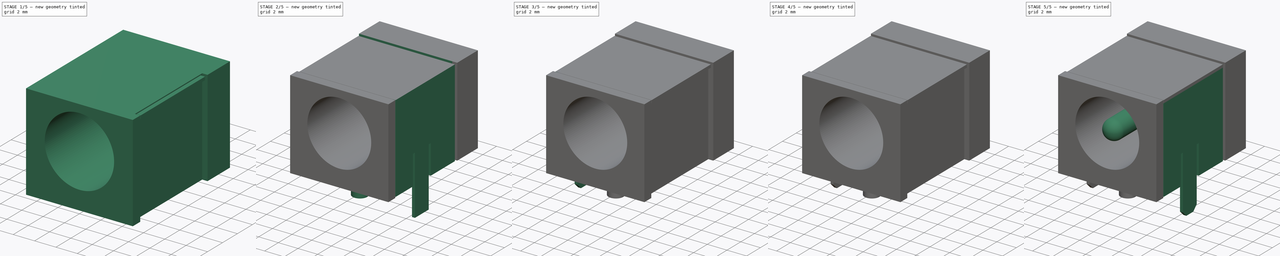
[diagram: build sequence overview — one tinted view per stage of 5, left to right]
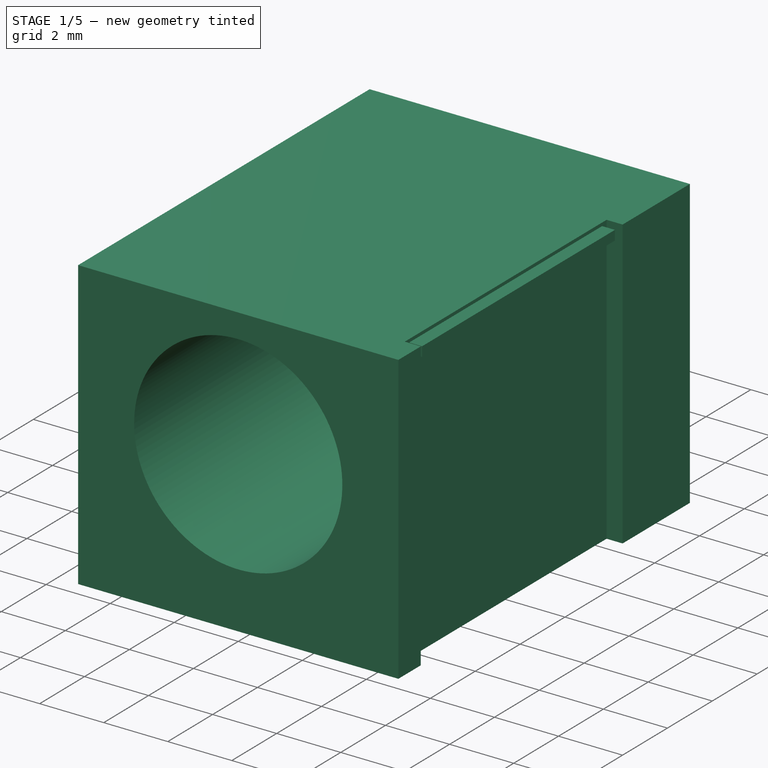
[diagram: stage 1 of 5 — iso view after this stage's code; geometry added in this stage tinted green]
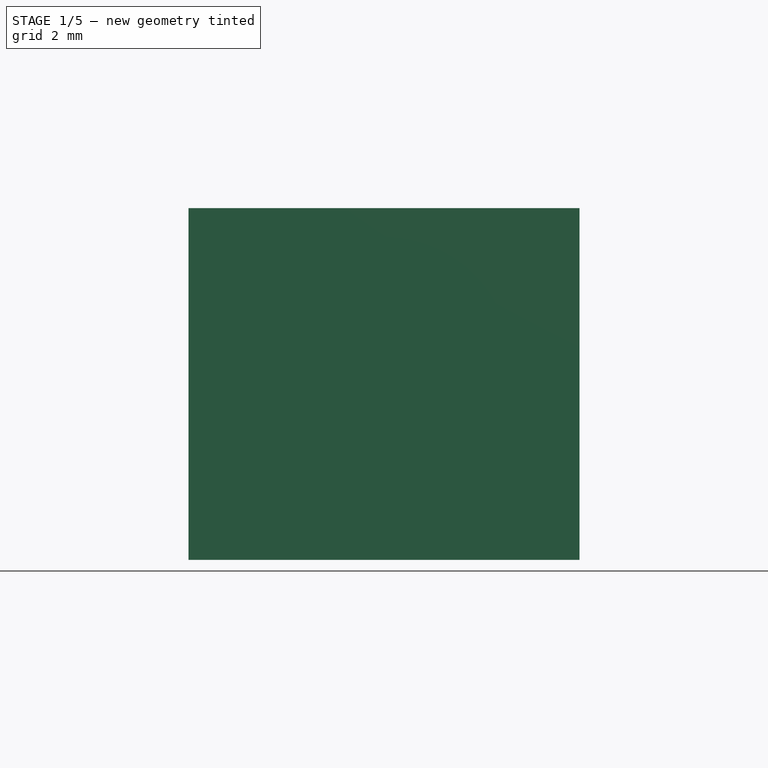
[diagram: stage 1 of 5 — front view after this stage's code; geometry added in this stage tinted green]
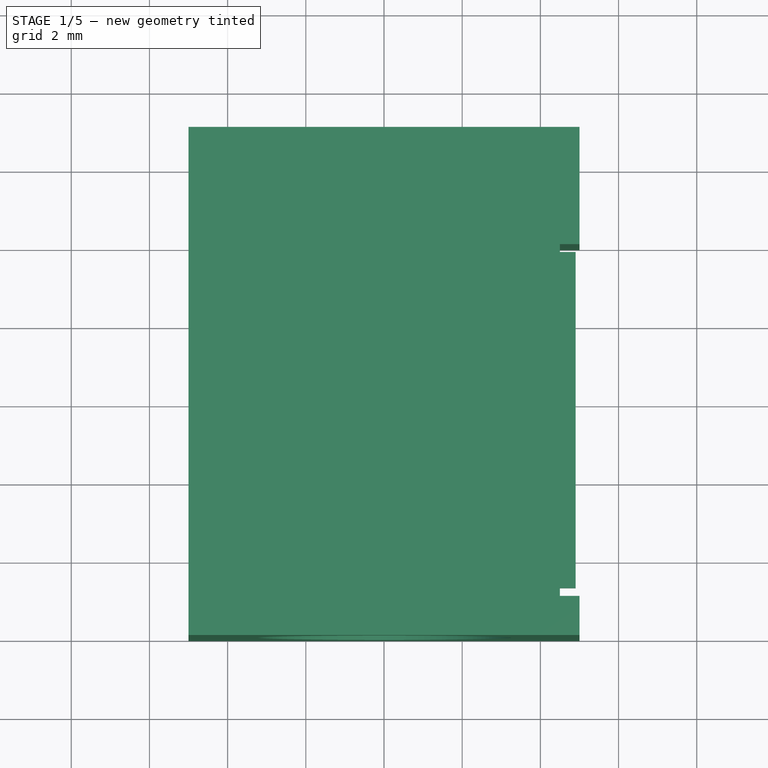
[diagram: stage 1 of 5 — top view after this stage's code; geometry added in this stage tinted green]
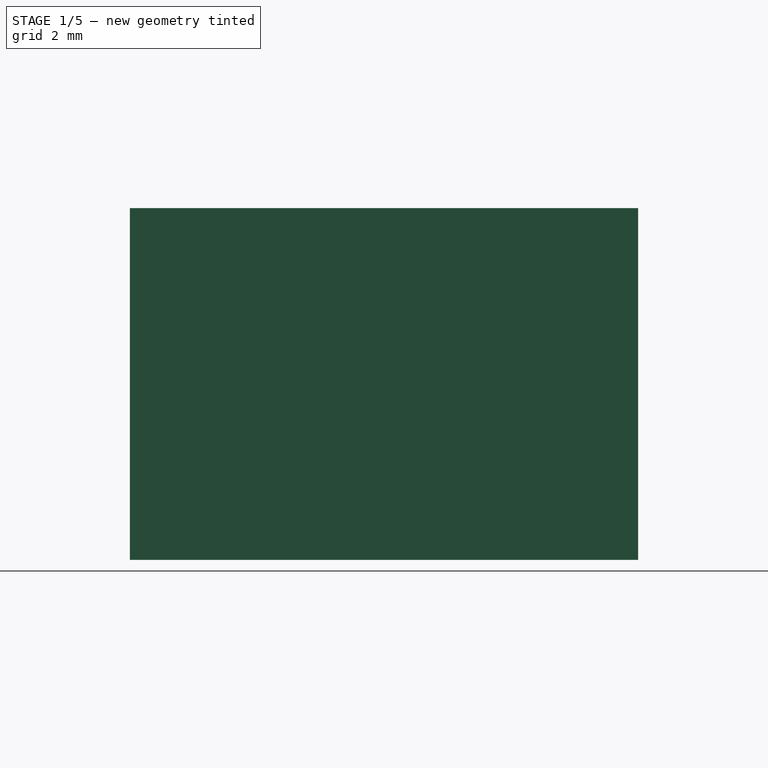
[diagram: stage 1 of 5 — right view after this stage's code; geometry added in this stage tinted green]
FCSTD DOCUMENT  (FreeCAD 0.15R4671 (Git))
Label: BarrelJack_CUI_PJ-063AH_Horizontal
License: All rights reserved
LicenseURL: http://en.wikipedia.org/wiki/All_rights_reserved
objects: Sketcher::SketchObject×11, PartDesign::Pad×7, PartDesign::Chamfer×6, PartDesign::Pocket×4, PartDesign::Fillet×1, Part::Mirroring×1, Part::MultiFuse×1
note: 42 computed .brp shape members not serialized (recipe doc carries the construction recipe); baked Part::Feature solids carry a one-line shape summary decoded from their .brp

FEATURE [Sketcher::SketchObject] Sketch
  sketch-geometry (4):
    g0: LineSegment StartX=-5 StartY=1 StartZ=0 EndX=5 EndY=1 EndZ=0
    g1: LineSegment StartX=5 StartY=1 StartZ=0 EndX=5 EndY=-12 EndZ=0
    g2: LineSegment StartX=5 StartY=-12 StartZ=0 EndX=-5 EndY=-12 EndZ=0
    g3: LineSegment StartX=-5 StartY=-12 StartZ=0 EndX=-5 EndY=1 EndZ=0
  constraints (12):
    c: Coincident(g0,g1)
    c: Coincident(g1,g2)
    c: Coincident(g2,g3)
    c: Coincident(g3,g0)
    c: Horizontal(g0)
    c: Horizontal(g2)
    c: Vertical(g1)
    c: Vertical(g3)
    c: Distance(g0) = 10
    c: Distance(g3) = 13
    c: Distance(g-1,g3) = 5
    c: Distance(g-1,g0) = 1
FEATURE [PartDesign::Pad] Pad  label="Block"
  Length = 9
  Length2 = 100
  Sketch = -> Sketch
  Type = 0
FEATURE [Sketcher::SketchObject] Sketch005
  Placement = pos=(0,-12,0) rot=(1,0,0;1.5708rad)
  Support = -> Pad [Face3]
  sketch-geometry (1):
    g0: Circle CenterX=0 CenterY=5 CenterZ=0 NormalX=0 NormalY=0 NormalZ=1 Radius=3.25
  constraints (3):
    c: PointOnObject(g0,g-2)
    c: Radius(g0) = 3.25
    c: DistanceY(g-1,g0) = 5
FEATURE [PartDesign::Pocket] Pocket
  Length = 8.85
  Sketch = -> Sketch005
  Type = 0
FEATURE [Sketcher::SketchObject] Sketch008
  Placement = pos=(5,0,0) rot=(0.57735,0.57735,0.57735;2.0944rad)
  Support = -> Pocket [Face3]
  sketch-geometry (4):
    g0: LineSegment StartX=-11 StartY=0 StartZ=0 EndX=-2 EndY=0 EndZ=0
    g1: LineSegment StartX=-2 StartY=0 StartZ=0 EndX=-2 EndY=9 EndZ=0
    g2: LineSegment StartX=-2 StartY=9 StartZ=0 EndX=-11 EndY=9 EndZ=0
    g3: LineSegment StartX=-11 StartY=9 StartZ=0 EndX=-11 EndY=0 EndZ=0
  constraints (12):
    c: Coincident(g0,g1)
    c: Coincident(g1,g2)
    c: Coincident(g2,g3)
    c: Coincident(g3,g0)
    c: Horizontal(g0)
    c: Horizontal(g2)
    c: Vertical(g1)
    c: Vertical(g3)
    c: PointOnObject(g0,g-1)
    c: Distance(g-1,g0) = 2
    c: Distance(g3) = 9
    c: Distance(g2) = 9
FEATURE [PartDesign::Pocket] Pocket001
  Length = 0.5
  Sketch = -> Sketch008
  Type = 0
FEATURE [Sketcher::SketchObject] Sketch011
  Placement = pos=(0,0,8.6) rot=(0,0,1;0rad)
  sketch-geometry (4):
    g0: LineSegment StartX=-4.9 StartY=-2.2 StartZ=0 EndX=4.9 EndY=-2.2 EndZ=0
    g1: LineSegment StartX=4.9 StartY=-2.2 StartZ=0 EndX=4.9 EndY=-10.8 EndZ=0
    g2: LineSegment StartX=4.9 StartY=-10.8 StartZ=0 EndX=-4.9 EndY=-10.8 EndZ=0
    g3: LineSegment StartX=-4.9 StartY=-10.8 StartZ=0 EndX=-4.9 EndY=-2.2 EndZ=0
  constraints (12):
    c: Coincident(g0,g1)
    c: Coincident(g1,g2)
    c: Coincident(g2,g3)
    c: Coincident(g3,g0)
    c: Horizontal(g0)
    c: Horizontal(g2)
    c: Vertical(g1)
    c: Vertical(g3)
    c: Distance(g0) = 9.8
    c: DistanceX(g-2,g0) = -4.9
    c: DistanceY(g-1,g0) = -2.2
    c: Distance(g3) = 8.6
FEATURE [PartDesign::Pad] Pad006  label="ShieldTop"
  Length = 0.3
  Length2 = 100
  Placement = pos=(0,0,8.6) rot=(0,0,1;0rad)
  Sketch = -> Sketch011
  Type = 0
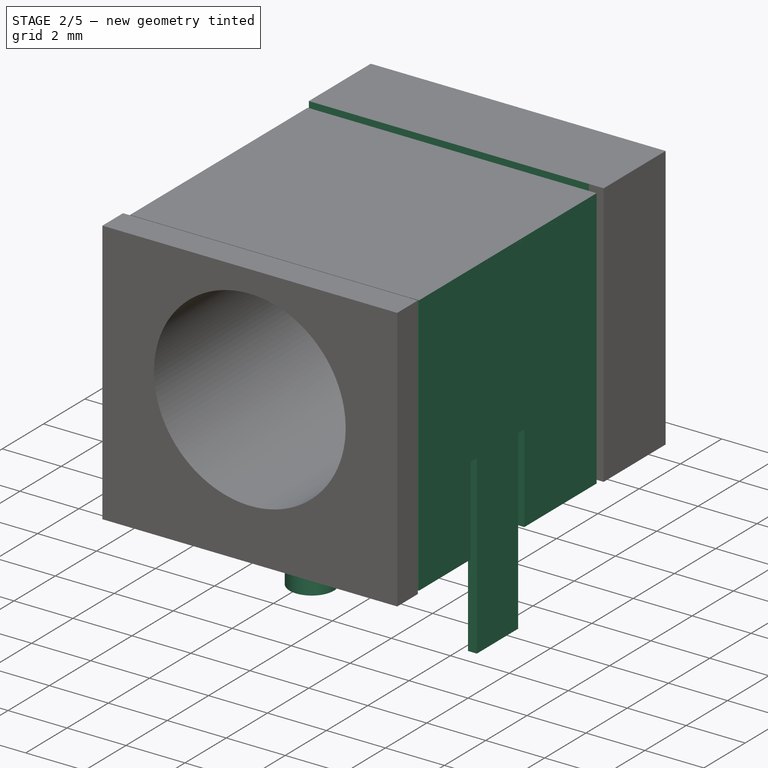
[diagram: stage 2 of 5 — iso view after this stage's code; geometry added in this stage tinted green]
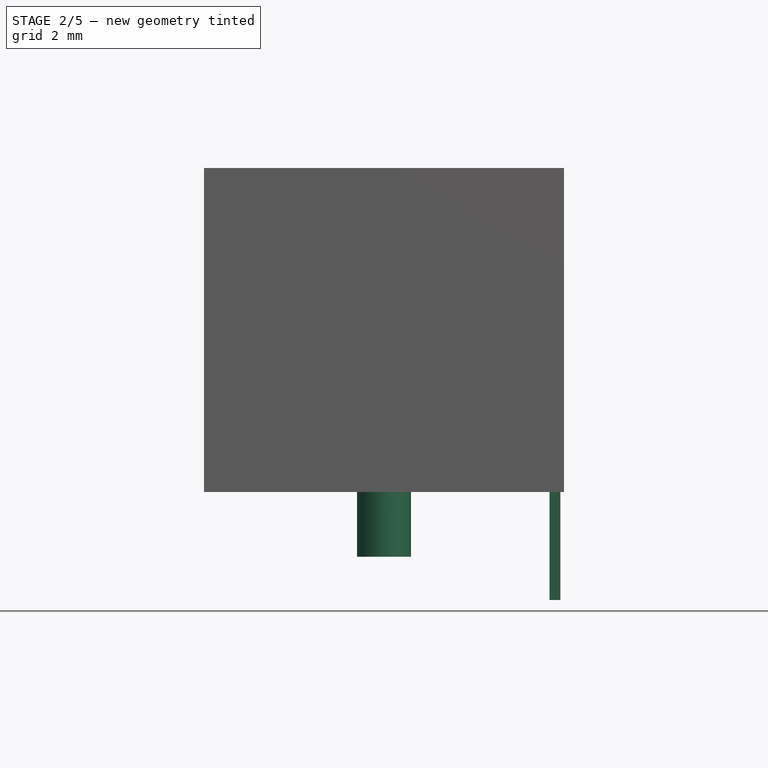
[diagram: stage 2 of 5 — front view after this stage's code; geometry added in this stage tinted green]
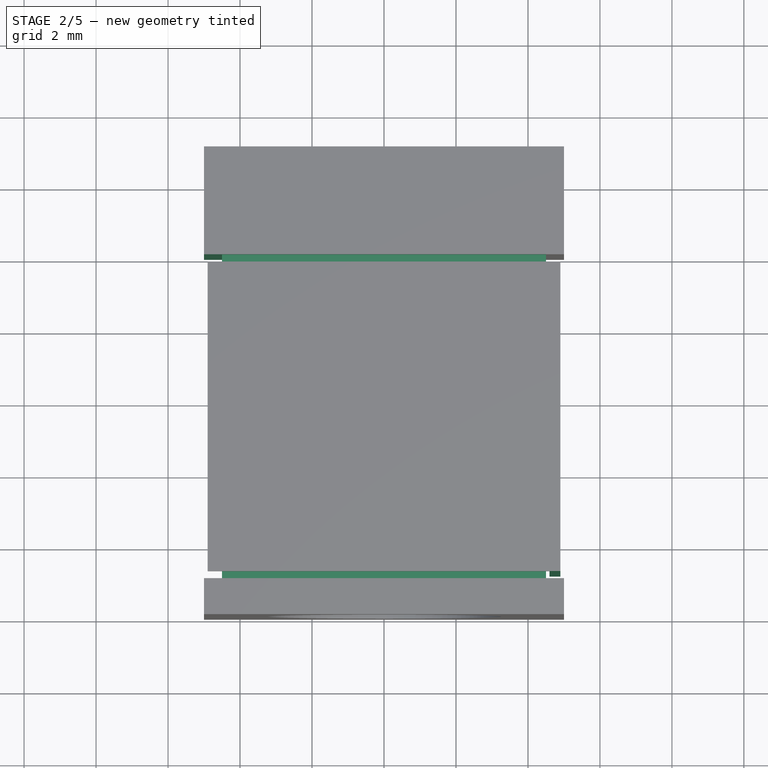
[diagram: stage 2 of 5 — top view after this stage's code; geometry added in this stage tinted green]
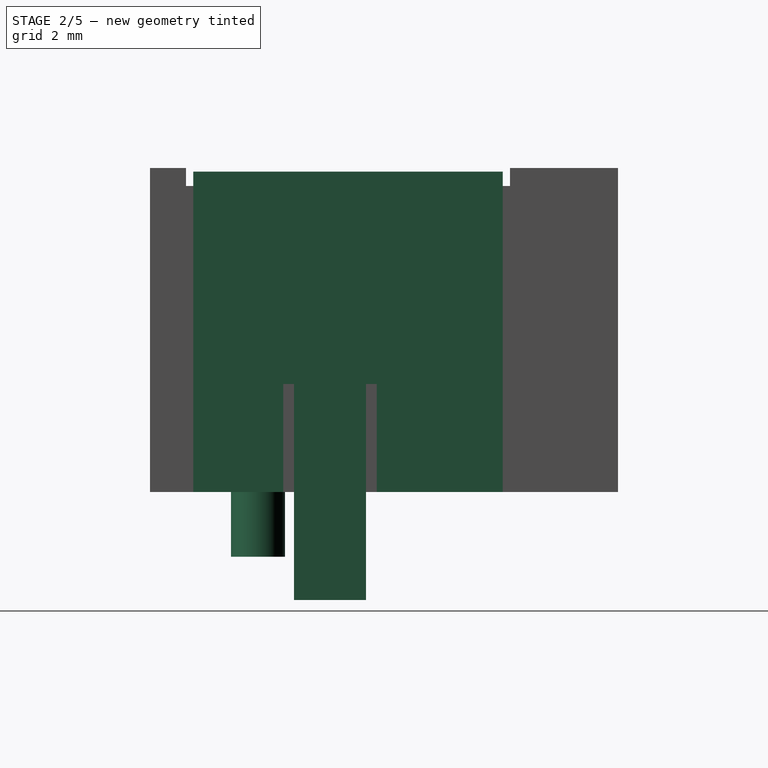
[diagram: stage 2 of 5 — right view after this stage's code; geometry added in this stage tinted green]
FEATURE [Sketcher::SketchObject] Sketch006
  Placement = pos=(4.9,0,0) rot=(0.57735,0.57735,0.57735;2.0944rad)
  sketch-geometry (14):
    g0: LineSegment StartX=-8 StartY=-3 StartZ=0 EndX=-6 EndY=-3 EndZ=0
    g1: LineSegment StartX=-6 StartY=-3 StartZ=0 EndX=-6 EndY=0 EndZ=0
    g2: LineSegment StartX=-8 StartY=0 StartZ=0 EndX=-8 EndY=-3 EndZ=0
    g3: LineSegment StartX=-8 StartY=0 StartZ=0 EndX=-8 EndY=3 EndZ=0
    g4: LineSegment StartX=-8 StartY=3 StartZ=0 EndX=-8.3 EndY=3 EndZ=0
    g5: LineSegment StartX=-8.3 StartY=3 StartZ=0 EndX=-8.3 EndY=0 EndZ=0
    g6: LineSegment StartX=-8.3 StartY=0 StartZ=0 EndX=-10.8 EndY=0 EndZ=0
    g7: LineSegment StartX=-10.8 StartY=0 StartZ=0 EndX=-10.8 EndY=8.9 EndZ=0
    g8: LineSegment StartX=-10.8 StartY=8.9 StartZ=0 EndX=-2.2 EndY=8.9 EndZ=0
    g9: LineSegment StartX=-2.2 StartY=8.9 StartZ=0 EndX=-2.2 EndY=0 EndZ=0
    g10: LineSegment StartX=-2.2 StartY=0 StartZ=0 EndX=-5.7 EndY=0 EndZ=0
    g11: LineSegment StartX=-5.7 StartY=0 StartZ=0 EndX=-5.7 EndY=3 EndZ=0
    g12: LineSegment StartX=-5.7 StartY=3 StartZ=0 EndX=-6 EndY=3 EndZ=0
    g13: LineSegment StartX=-6 StartY=3 StartZ=0 EndX=-6 EndY=0 EndZ=0
  constraints (40):
    c: Coincident(g0,g1)
    c: Coincident(g2,g0)
    c: Horizontal(g0)
    c: Vertical(g1)
    c: Vertical(g2)
    c: PointOnObject(g1,g-1)
    c: DistanceX(g-2,g0) = -6
    c: Distance(g0) = 2
    c: Distance(g2) = 3
    c: Vertical(g3)
    c: Coincident(g3,g4)
    c: Horizontal(g4)
    c: Coincident(g4,g5)
    c: PointOnObject(g5,g-1)
    c: Vertical(g5)
    c: Coincident(g5,g6)
    c: Horizontal(g6)
    c: Coincident(g6,g7)
    c: Vertical(g7)
    c: Coincident(g7,g8)
    c: Horizontal(g8)
    c: Coincident(g8,g9)
    c: Vertical(g9)
    c: Coincident(g9,g10)
    c: PointOnObject(g10,g-1)
    c: Horizontal(g10)
    c: Coincident(g10,g11)
    c: Vertical(g11)
    c: Coincident(g11,g12)
    c: Coincident(g12,g13)
    c: Coincident(g13,g1)
    c: Vertical(g13)
    c: Distance(g5) = 3
    c: Equal(g13,g3)
    c: Equal(g11,g3)
    c: Distance(g4,g3) = 0.3
    c: Distance(g12) = 0.3
    c: Distance(g6) = 2.5
    c: Distance(g10) = 3.5
    c: Distance(g7) = 8.9
FEATURE [PartDesign::Pad] Pad004  label="3"
  Length = 0.3
  Length2 = 100
  Placement = pos=(4.9,0,0) rot=(0.57735,0.57735,0.57735;2.0944rad)
  Reversed = true
  Sketch = -> Sketch006
  Type = 0
FEATURE [Sketcher::SketchObject] Sketch007
  sketch-geometry (1):
    g0: Circle CenterX=0 CenterY=-9 CenterZ=0 NormalX=0 NormalY=0 NormalZ=1 Radius=0.75
  constraints (3):
    c: PointOnObject(g0,g-2)
    c: Radius(g0) = 0.75
    c: Distance(g-1,g0) = 9
FEATURE [PartDesign::Pad] Pad005  label="Pad"
  Length = 1.8
  Length2 = 100
  Reversed = true
  Sketch = -> Sketch007
  Type = 0
FEATURE [Sketcher::SketchObject] Sketch009
  Placement = pos=(-5,0,0) rot=(0.57735,-0.57735,-0.57735;2.0944rad)
  Support = -> Pocket001 [Face2]
  sketch-geometry (4):
    g0: LineSegment StartX=2 StartY=0 StartZ=0 EndX=11 EndY=0 EndZ=0
    g1: LineSegment StartX=11 StartY=0 StartZ=0 EndX=11 EndY=9 EndZ=0
    g2: LineSegment StartX=11 StartY=9 StartZ=0 EndX=2 EndY=9 EndZ=0
    g3: LineSegment StartX=2 StartY=9 StartZ=0 EndX=2 EndY=0 EndZ=0
  constraints (12):
    c: Coincident(g0,g1)
    c: Coincident(g1,g2)
    c: Coincident(g2,g3)
    c: Coincident(g3,g0)
    c: Horizontal(g0)
    c: Horizontal(g2)
    c: Vertical(g1)
    c: Vertical(g3)
    c: PointOnObject(g0,g-1)
    c: Distance(g3) = 9
    c: Distance(g2) = 9
    c: Distance(g-1,g0) = 2
FEATURE [PartDesign::Pocket] Pocket002
  Length = 0.5
  Sketch = -> Sketch009
  Type = 0
FEATURE [Sketcher::SketchObject] Sketch010
  Placement = pos=(0,0,9) rot=(0,0,1;0rad)
  Support = -> Pocket002 [Face5]
  sketch-geometry (4):
    g0: LineSegment StartX=-5 StartY=-2 StartZ=0 EndX=5 EndY=-2 EndZ=0
    g1: LineSegment StartX=5 StartY=-2 StartZ=0 EndX=5 EndY=-11 EndZ=0
    g2: LineSegment StartX=5 StartY=-11 StartZ=0 EndX=-5 EndY=-11 EndZ=0
    g3: LineSegment StartX=-5 StartY=-11 StartZ=0 EndX=-5 EndY=-2 EndZ=0
  constraints (12):
    c: Coincident(g0,g1)
    c: Coincident(g1,g2)
    c: Coincident(g2,g3)
    c: Coincident(g3,g0)
    c: Horizontal(g0)
    c: Horizontal(g2)
    c: Vertical(g1)
    c: Vertical(g3)
    c: Distance(g0) = 10
    c: DistanceY(g-1,g0) = -2
    c: Distance(g3) = 9
    c: DistanceX(g-2,g0) = -5
FEATURE [PartDesign::Pocket] Pocket003  label="Body"
  Length = 0.5
  Sketch = -> Sketch010
  Type = 0
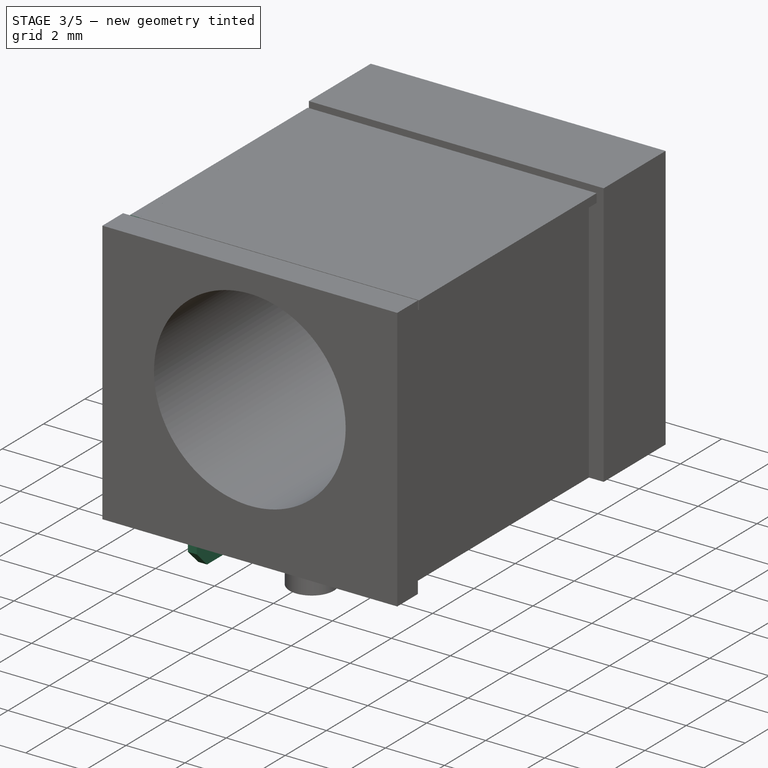
[diagram: stage 3 of 5 — iso view after this stage's code; geometry added in this stage tinted green]
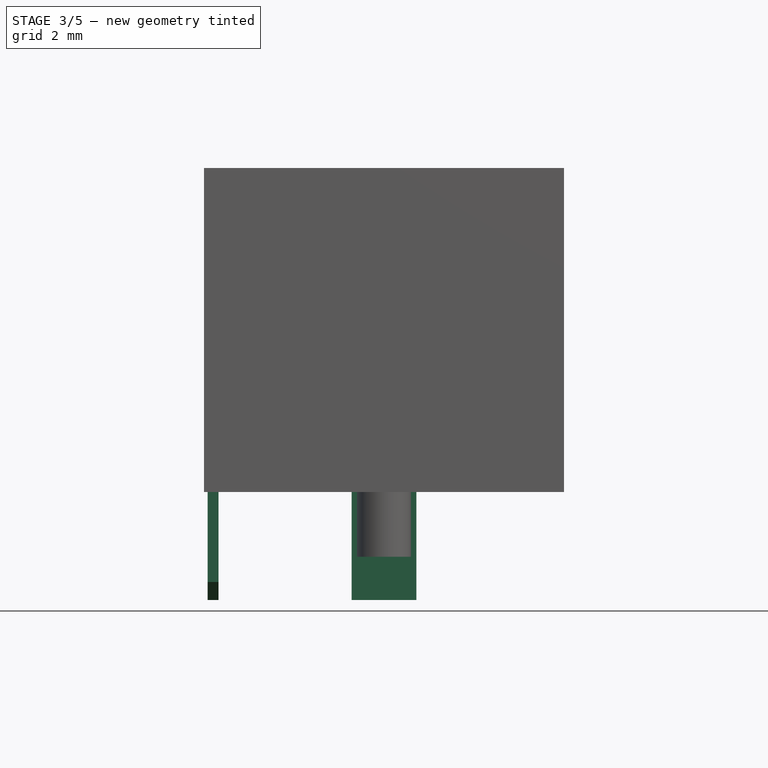
[diagram: stage 3 of 5 — front view after this stage's code; geometry added in this stage tinted green]
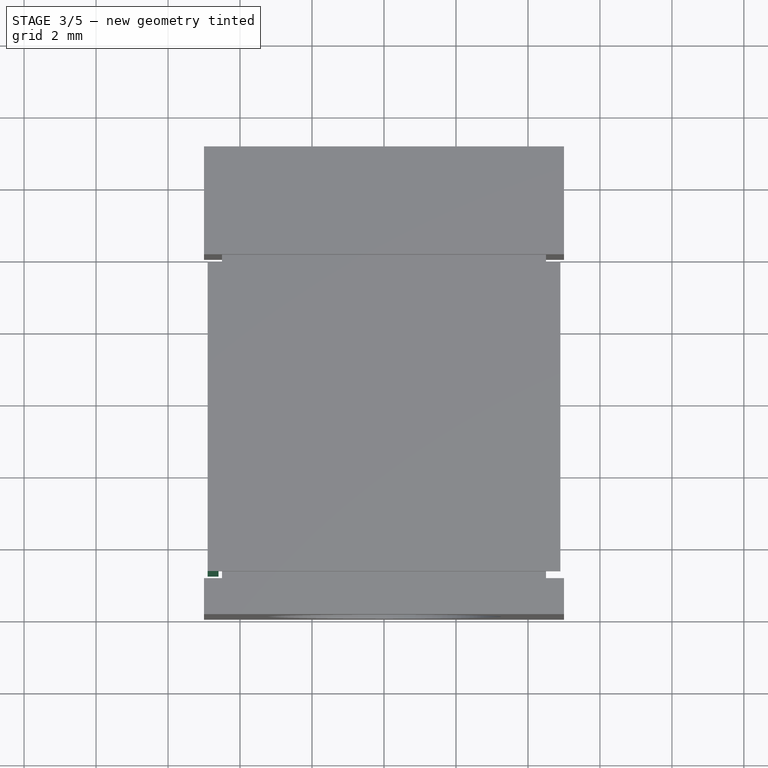
[diagram: stage 3 of 5 — top view after this stage's code; geometry added in this stage tinted green]
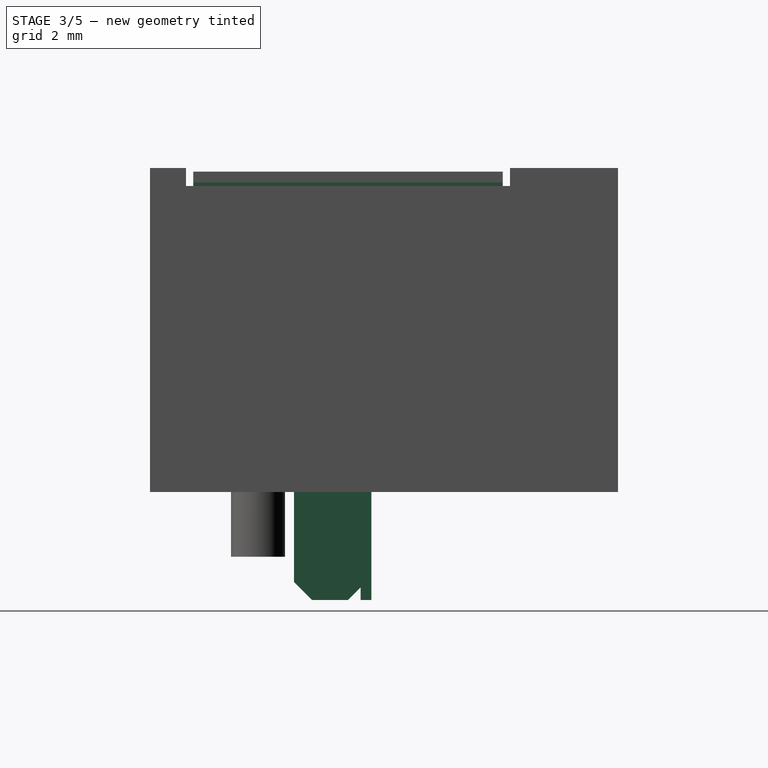
[diagram: stage 3 of 5 — right view after this stage's code; geometry added in this stage tinted green]
FEATURE [Sketcher::SketchObject] Sketch004
  Placement = pos=(0,-6.15,0) rot=(1,0,0;1.5708rad)
  sketch-geometry (4):
    g0: LineSegment StartX=-0.9 StartY=-3 StartZ=0 EndX=0.9 EndY=-3 EndZ=0
    g1: LineSegment StartX=0.9 StartY=-3 StartZ=0 EndX=0.9 EndY=0 EndZ=0
    g2: LineSegment StartX=0.9 StartY=0 StartZ=0 EndX=-0.9 EndY=0 EndZ=0
    g3: LineSegment StartX=-0.9 StartY=0 StartZ=0 EndX=-0.9 EndY=-3 EndZ=0
  constraints (12):
    c: Coincident(g0,g1)
    c: Coincident(g1,g2)
    c: Coincident(g2,g3)
    c: Coincident(g3,g0)
    c: Horizontal(g0)
    c: Horizontal(g2)
    c: Vertical(g1)
    c: Vertical(g3)
    c: PointOnObject(g1,g-1)
    c: Distance(g1) = 3
    c: Distance(g0) = 1.8
    c: DistanceX(g-2,g0) = 0.9
FEATURE [PartDesign::Pad] Pad003  label="2"
  Length = 0.3
  Length2 = 100
  Placement = pos=(0,-6.15,0) rot=(1,0,0;1.5708rad)
  Reversed = true
  Sketch = -> Sketch004
  Type = 0
FEATURE [PartDesign::Chamfer] Chamfer004
  Base = -> Pad004 [Edge1]
  Placement = pos=(4.9,0,0) rot=(0.57735,0.57735,0.57735;2.0944rad)
  Size = 0.5
FEATURE [PartDesign::Chamfer] Chamfer005  label="Pin3"
  Base = -> Chamfer004 [Edge3]
  Placement = pos=(4.9,0,0) rot=(0.57735,0.57735,0.57735;2.0944rad)
  Size = 0.5
FEATURE [Part::Mirroring] Part__Mirroring  label="Pins3"
  Base = (-1.19209e-07,-7,-1.5)
  Normal = (1,0,-1.19209e-07)
  Source = -> Chamfer005
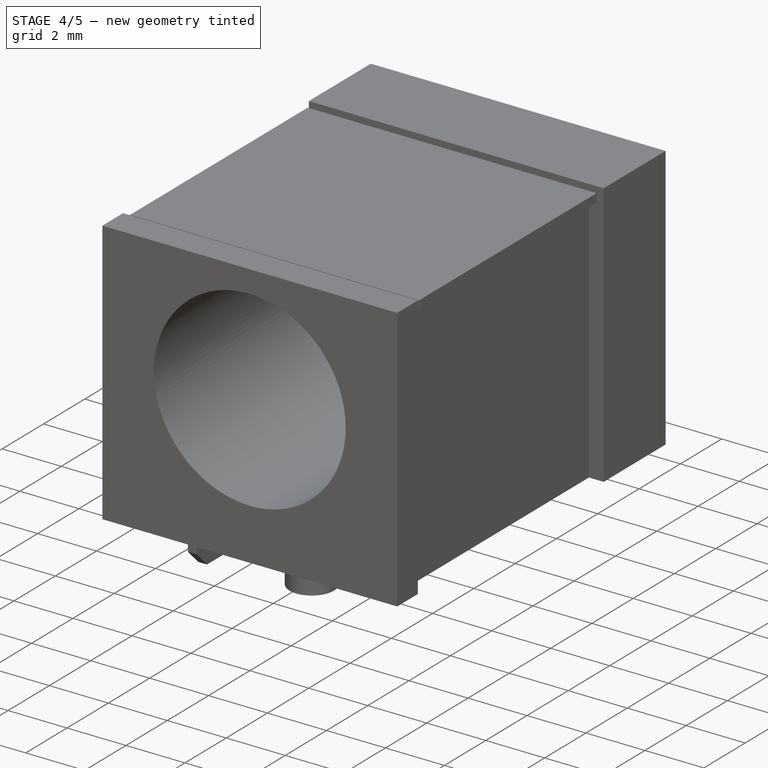
[diagram: stage 4 of 5 — iso view after this stage's code; geometry added in this stage tinted green]
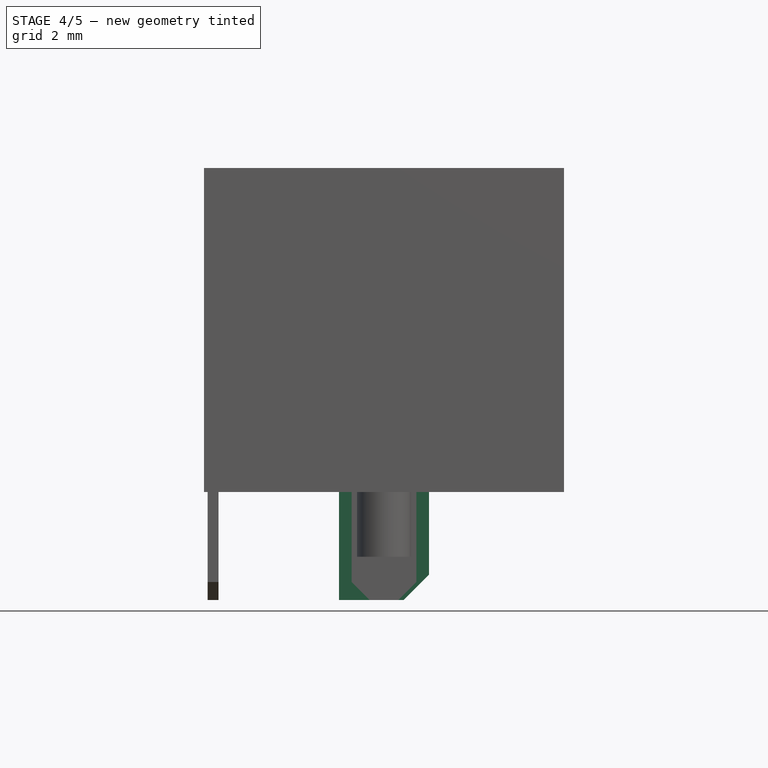
[diagram: stage 4 of 5 — front view after this stage's code; geometry added in this stage tinted green]
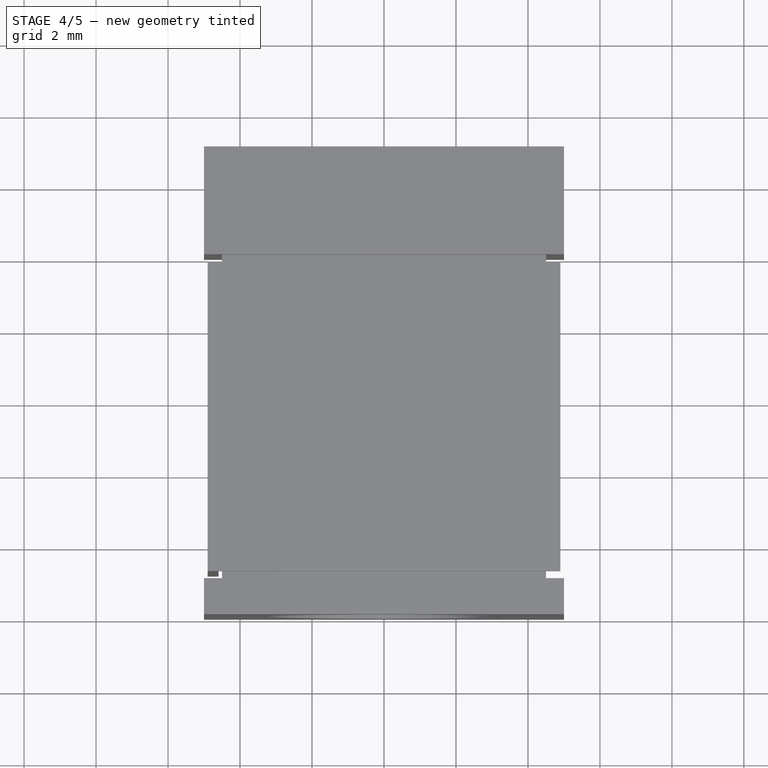
[diagram: stage 4 of 5 — top view after this stage's code; geometry added in this stage tinted green]
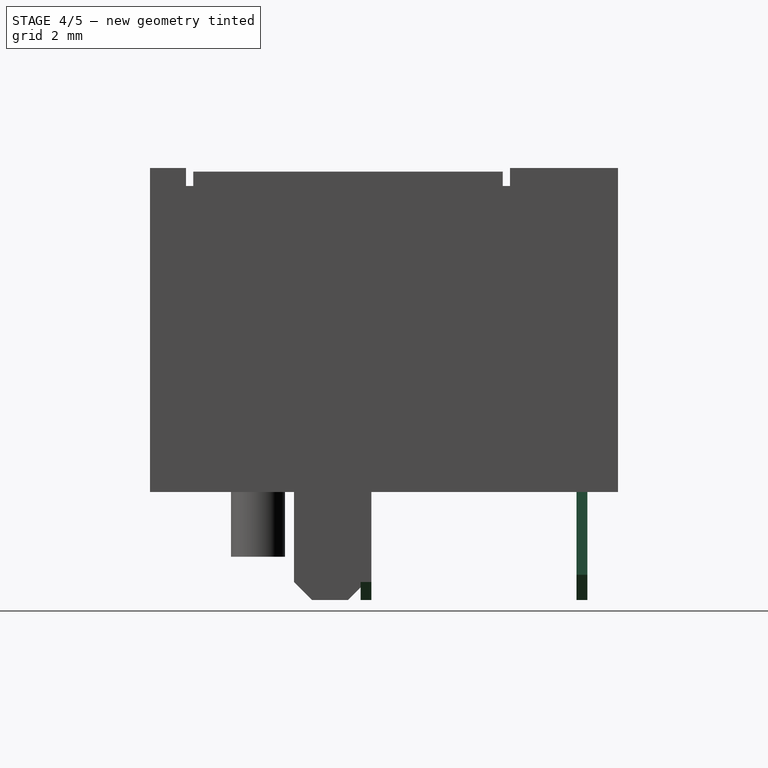
[diagram: stage 4 of 5 — right view after this stage's code; geometry added in this stage tinted green]
FEATURE [Sketcher::SketchObject] Sketch003
  Placement = pos=(0,-0.15,0) rot=(1,0,0;1.5708rad)
  sketch-geometry (4):
    g0: LineSegment StartX=-1.25 StartY=-3 StartZ=0 EndX=1.25 EndY=-3 EndZ=0
    g1: LineSegment StartX=1.25 StartY=-3 StartZ=0 EndX=1.25 EndY=0 EndZ=0
    g2: LineSegment StartX=1.25 StartY=0 StartZ=0 EndX=-1.25 EndY=0 EndZ=0
    g3: LineSegment StartX=-1.25 StartY=0 StartZ=0 EndX=-1.25 EndY=-3 EndZ=0
  constraints (12):
    c: Coincident(g0,g1)
    c: Coincident(g1,g2)
    c: Coincident(g2,g3)
    c: Coincident(g3,g0)
    c: Horizontal(g0)
    c: Horizontal(g2)
    c: Vertical(g1)
    c: Vertical(g3)
    c: PointOnObject(g1,g-1)
    c: Distance(g0) = 2.5
    c: DistanceX(g-2,g0) = -1.25
    c: Distance(g1) = 3
FEATURE [PartDesign::Pad] Pad002  label="1"
  Length = 0.3
  Length2 = 100
  Placement = pos=(0,-0.15,0) rot=(1,0,0;1.5708rad)
  Reversed = true
  Sketch = -> Sketch003
  Type = 0
FEATURE [PartDesign::Chamfer] Chamfer
  Base = -> Pad002 [Edge2]
  Placement = pos=(0,-0.15,0) rot=(1,0,0;1.5708rad)
  Size = 0.7
FEATURE [PartDesign::Chamfer] Chamfer002
  Base = -> Pad003 [Edge2]
  Placement = pos=(0,-6.15,0) rot=(1,0,0;1.5708rad)
  Size = 0.5
FEATURE [PartDesign::Chamfer] Chamfer003  label="Pin2"
  Base = -> Chamfer002 [Edge3]
  Placement = pos=(0,-6.15,0) rot=(1,0,0;1.5708rad)
  Size = 0.5
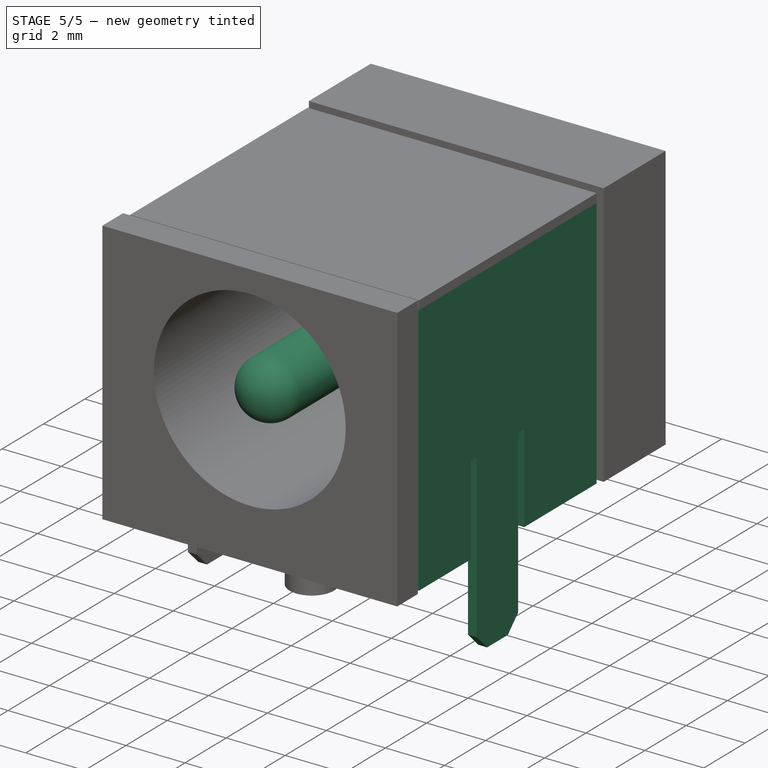
[diagram: stage 5 of 5 — iso view after this stage's code; geometry added in this stage tinted green]
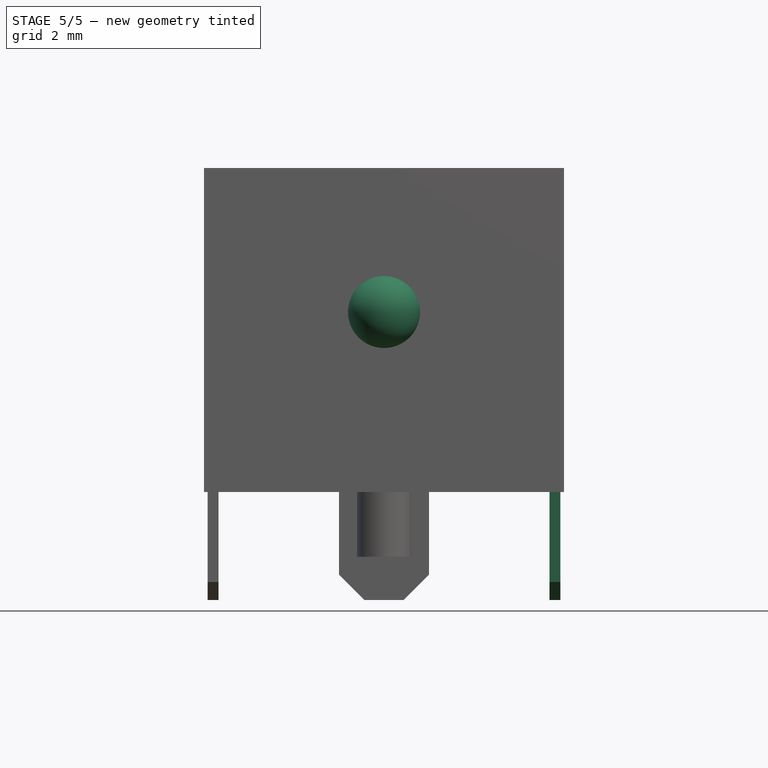
[diagram: stage 5 of 5 — front view after this stage's code; geometry added in this stage tinted green]
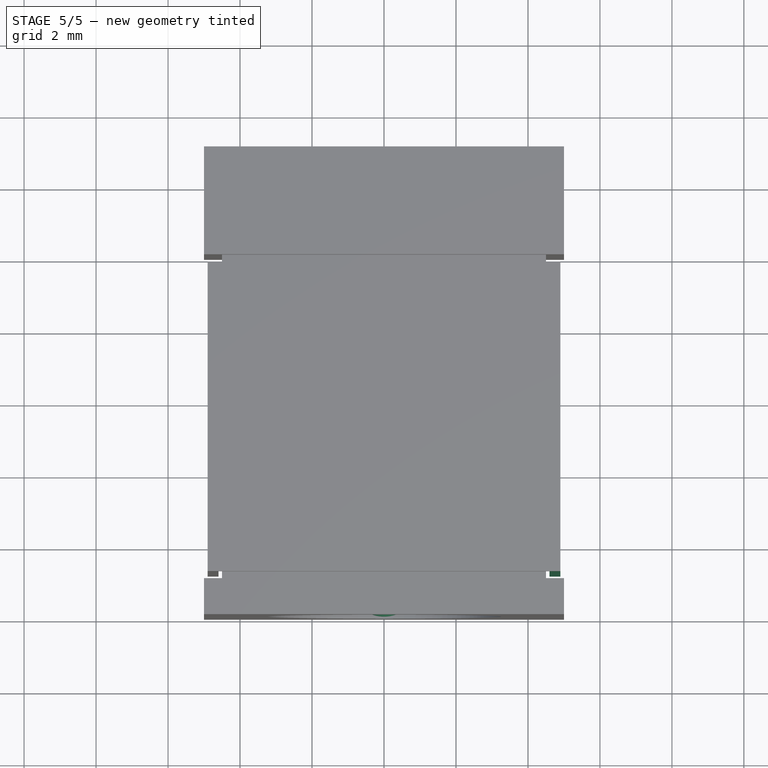
[diagram: stage 5 of 5 — top view after this stage's code; geometry added in this stage tinted green]
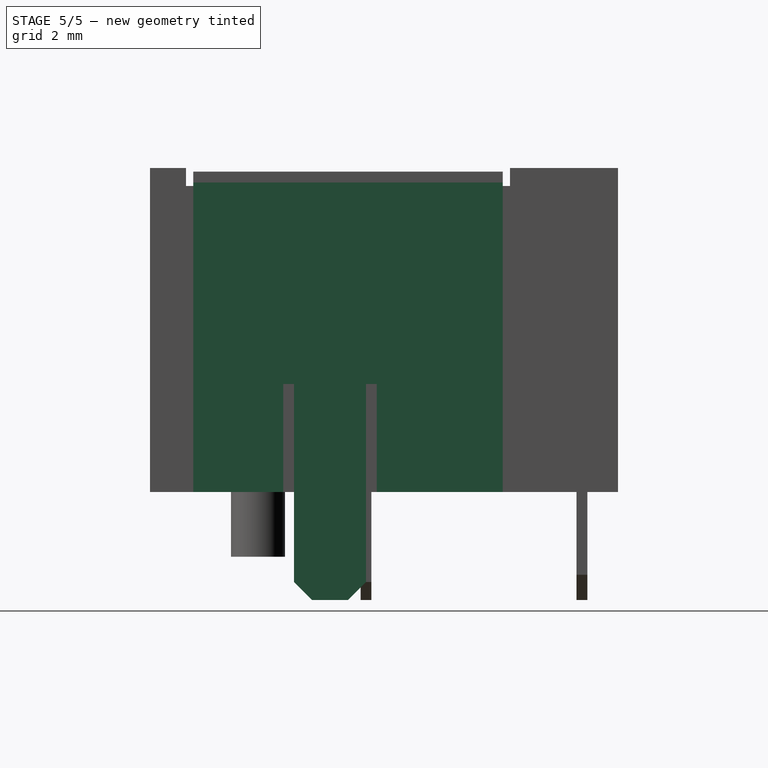
[diagram: stage 5 of 5 — right view after this stage's code; geometry added in this stage tinted green]
FEATURE [Sketcher::SketchObject] Sketch002
  Placement = pos=(0,-12,0) rot=(1,0,0;1.5708rad)
  sketch-geometry (1):
    g0: Circle CenterX=0 CenterY=5 CenterZ=0 NormalX=0 NormalY=0 NormalZ=1 Radius=1
  constraints (3):
    c: PointOnObject(g0,g-2)
    c: Radius(g0) = 1
    c: DistanceY(g-1,g0) = 5
FEATURE [PartDesign::Pad] Pad001
  Length = 8.85
  Length2 = 100
  Placement = pos=(0,-12,0) rot=(1,0,0;1.5708rad)
  Reversed = true
  Sketch = -> Sketch002
  Type = 0
FEATURE [PartDesign::Fillet] Fillet  label="CentralPin"
  Base = -> Pad001 [Edge2]
  Placement = pos=(0,-12,0) rot=(1,0,0;1.5708rad)
  Radius = 1
FEATURE [PartDesign::Chamfer] Chamfer001  label="Pin1"
  Base = -> Chamfer [Edge3]
  Placement = pos=(0,-0.15,0) rot=(1,0,0;1.5708rad)
  Size = 0.7
FEATURE [Part::MultiFuse] Fusion  label="BarrelJack_CUI_PJ-063AH_Horizontal"
  Shapes = -> [Pad005,Fillet,Chamfer001,Chamfer003,Part__Mirroring,Chamfer005,Pocket003,Pad006]
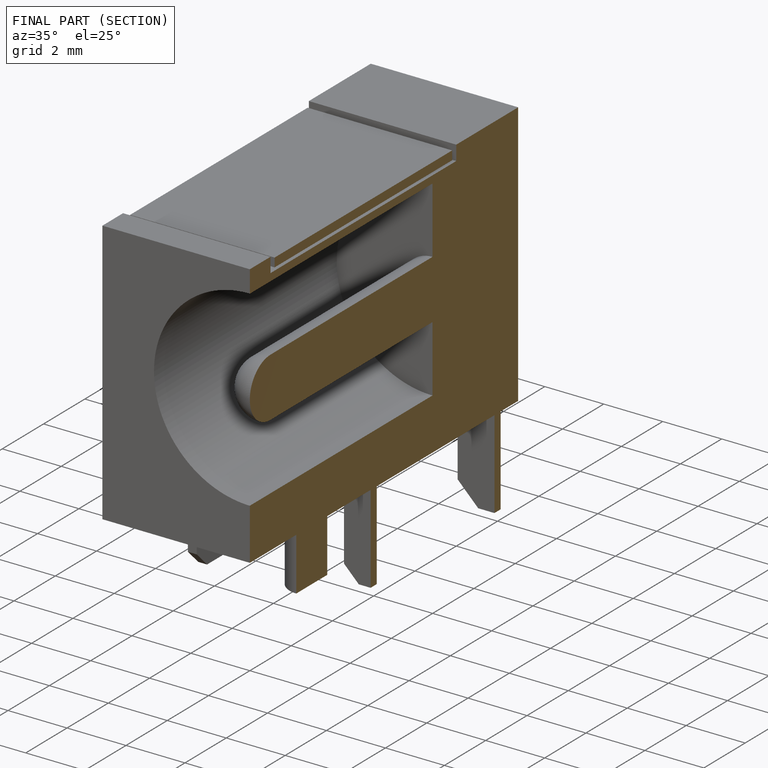
[diagram: finished part — half-section view (interior)]
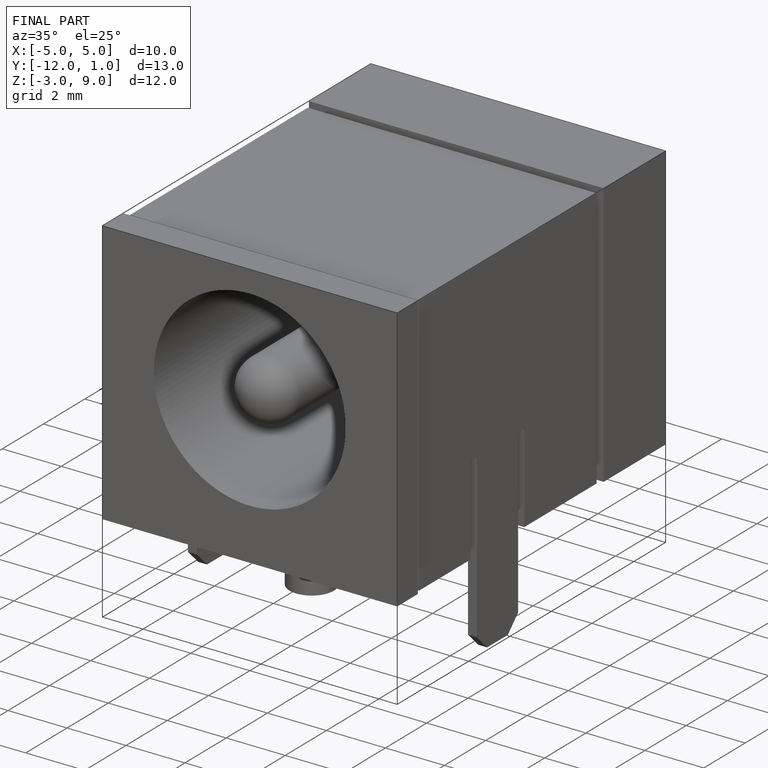
[diagram: finished part — iso view with bounding-box wireframe]
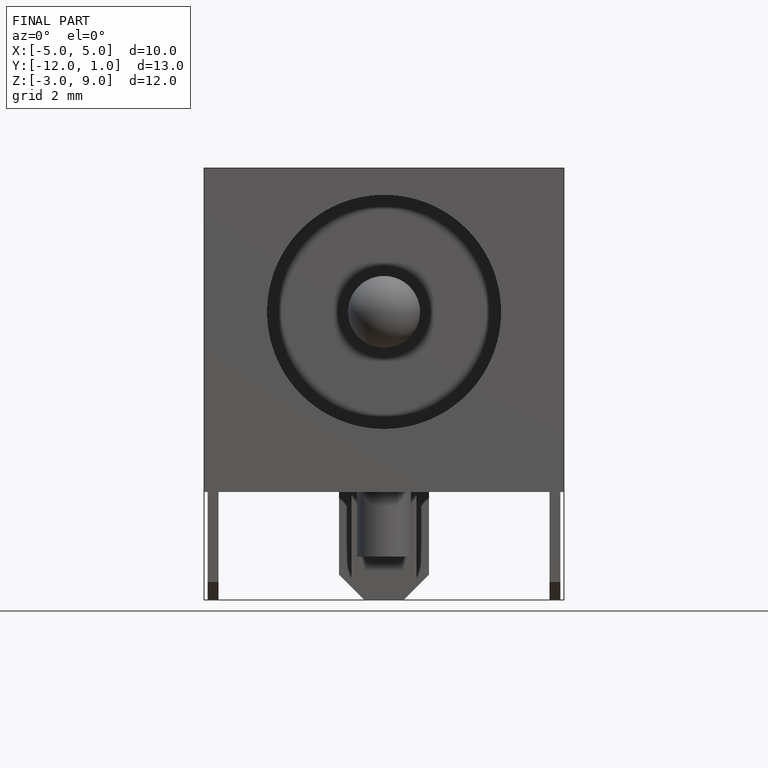
[diagram: finished part — front view with bounding-box wireframe]
